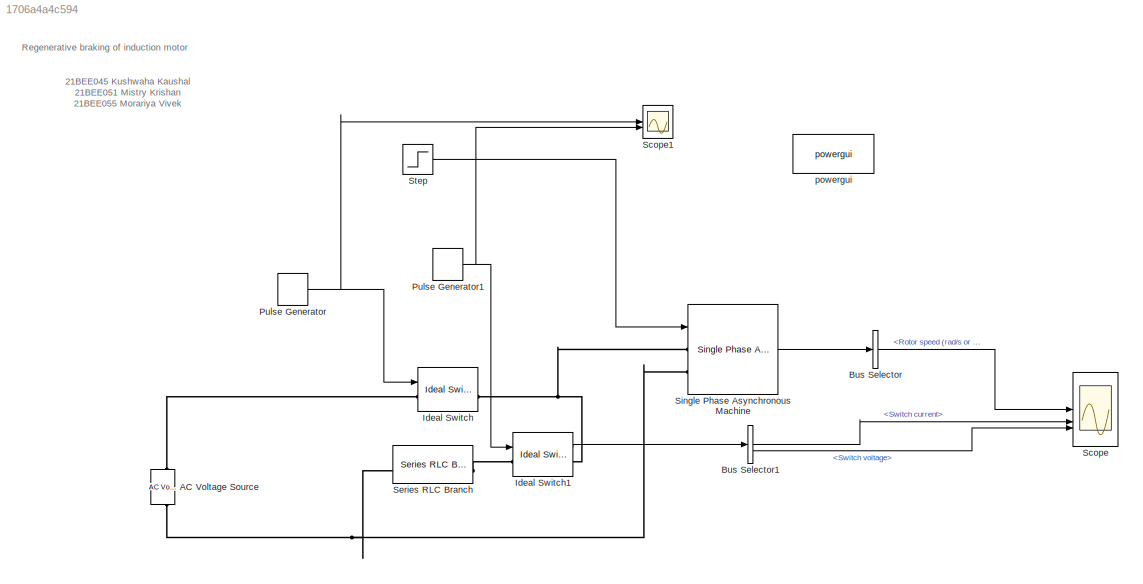
MODEL slx_1706a4a4c594
KIND model
CONFIG AbsTol = auto
CONFIG EnableMultiTasking = off
CONFIG FixedStep = auto
CONFIG MaxStep = auto
CONFIG MinStep = auto
CONFIG RelTol = 1e-3
CONFIG SampleTimeConstraint = Unconstrained
CONFIG SolverName = VariableStepAuto
CONFIG StartTime = 0.0
CONFIG StopTime = 10.0
BLOCK [Reference] AC Voltage Source  REF=spsACVoltageSourceLib/AC Voltage Source
  LibrarySourceBlock = sps_lib/Sources/AC Voltage Source
  SourceBlock = spsACVoltageSourceLib/AC Voltage Source
  SourceType = AC Voltage Source
BLOCK [BusSelector] Bus Selector
  OutputSignals = Mechanical.Rotor speed (rad/s or pu)
BLOCK [BusSelector] Bus Selector1
  OutputSignals = Switch current,Switch voltage
BLOCK [Reference] Ideal Switch  REF=spsIdealSwitchLib/Ideal Switch
  LibrarySourceBlock = sps_lib/Power Electronics/Ideal Switch
  SourceBlock = spsIdealSwitchLib/Ideal Switch
  SourceType = Ideal Switch
BLOCK [Reference] Ideal Switch1  REF=spsIdealSwitchLib/Ideal Switch
  LibrarySourceBlock = sps_lib/Power Electronics/Ideal Switch
  SourceBlock = spsIdealSwitchLib/Ideal Switch
  SourceType = Ideal Switch
BLOCK [DiscretePulseGenerator] Pulse Generator
  Period = 10
  PhaseDelay = 0.000005
  PulseType = Time based
  PulseWidth = 50
BLOCK [DiscretePulseGenerator] Pulse Generator1
  Period = 10
  PhaseDelay = 5
  PulseType = Time based
  PulseWidth = 50
BLOCK [Scope] Scope
  Floating = off
  NumInputPorts = 3
  ScopeSpecificationString = Simulink.scopes.TimeScopeBlockCfg('CurrentConfiguration', extmgr.ConfigurationSet(extmgr.Configuration('Core','General UI',true),extmgr.Configuration('Core','Source UI',true),extmgr.Configuration('Sources','WiredSimulink',true),extmgr.Configuration('Visuals','Time Domain',true,'SerializedDisplays',{struct('MinYLimReal','-20.59219','MaxYLimReal','183.24659','YLabelReal','','MinYLimMag','0.00000','M...<+2677ch>
BLOCK [Scope] Scope1
  Floating = off
  NumInputPorts = 2
  ScopeSpecificationString = Simulink.scopes.TimeScopeBlockCfg('CurrentConfiguration', extmgr.ConfigurationSet(extmgr.Configuration('Core','General UI',true),extmgr.Configuration('Core','Source UI',true),extmgr.Configuration('Sources','WiredSimulink',true,'DataLoggingVariableName','ScopeData1'),extmgr.Configuration('Visuals','Time Domain',true,'SerializedDisplays',{struct('MinYLimReal','-0.125','MaxYLimReal','1.125','YLabelRe...<+1388ch>
BLOCK [Reference] Series RLC Branch  REF=spsSeriesRLCBranchLib/Series RLC Branch
  LibrarySourceBlock = sps_lib/Passives/Series RLC Branch
  SourceBlock = spsSeriesRLCBranchLib/Series RLC Branch
  SourceType = Series RLC Branch
BLOCK [Reference] Single Phase Asynchronous Machine  REF=spsSinglePhaseAsynchronousMachineLib/Single Phase
Asynchronous Machine
  LibrarySourceBlock = sps_lib/Electrical Machines/Single Phase\nAsynchronous Machine
  SourceBlock = spsSinglePhaseAsynchronousMachineLib/Single Phase\nAsynchronous Machine
  SourceType = Single Phase Asynchronous Machine
BLOCK [Step] Step
  After = 0
  Before = 1
  SampleTime = 0
  Time = 5
BLOCK [Reference] powergui  REF=spspowerguiLib/powergui
  LibrarySourceBlock = sps_lib/powergui
  Priority = 1
  SourceBlock = spspowerguiLib/powergui
  SourceType = PSB option menu block
ANNOTATION (root): 21BEE045 Kushwaha Kaushal 21BEE051 Mistry Krishan 21BEE055 Morariya Vivek
ANNOTATION (root): Regenerative braking of induction motor
LINE Bus Selector1:1 -> Scope:2
LINE Bus Selector1:2 -> Scope:3
LINE Bus Selector:1 -> Scope:1
LINE Ideal Switch1:1 -> Bus Selector1:1
NET Pulse Generator1:1 -> Ideal Switch1:1, Scope1:2
NET Pulse Generator:1 -> Ideal Switch:1, Scope1:1
LINE Single Phase Asynchronous Machine:1 -> Bus Selector:1
LINE Step:1 -> Single Phase Asynchronous Machine:1
PNET net1: AC Voltage Source:LConn1 -- Series RLC Branch:LConn1 -- Single Phase Asynchronous Machine:LConn2
PLINE AC Voltage Source:RConn1 -- Ideal Switch:LConn1
PLINE Ideal Switch1:LConn1 -- Series RLC Branch:RConn1
PNET net2: Ideal Switch1:RConn1 -- Ideal Switch:RConn1 -- Single Phase Asynchronous Machine:LConn1
note: NET lines group one-source signal fan-out (src -> all destinations, sorted); 1:1 wires keep LINE; PNET lines group multi-terminal physical nets as a canonical sorted terminal list (undirected conserving connections); 2-terminal nets keep the pairwise PLINE form
